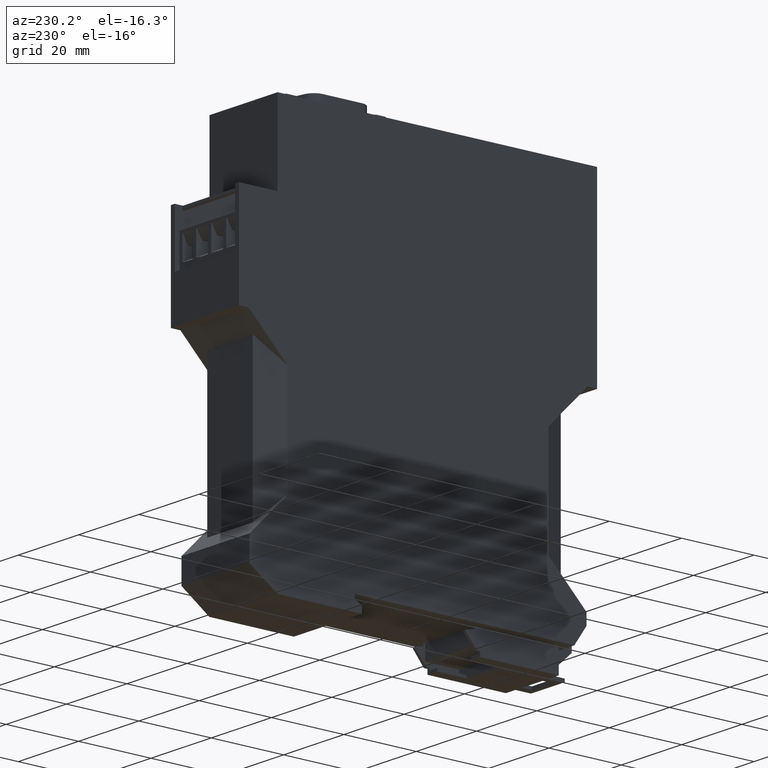
[diagram: clean part render]
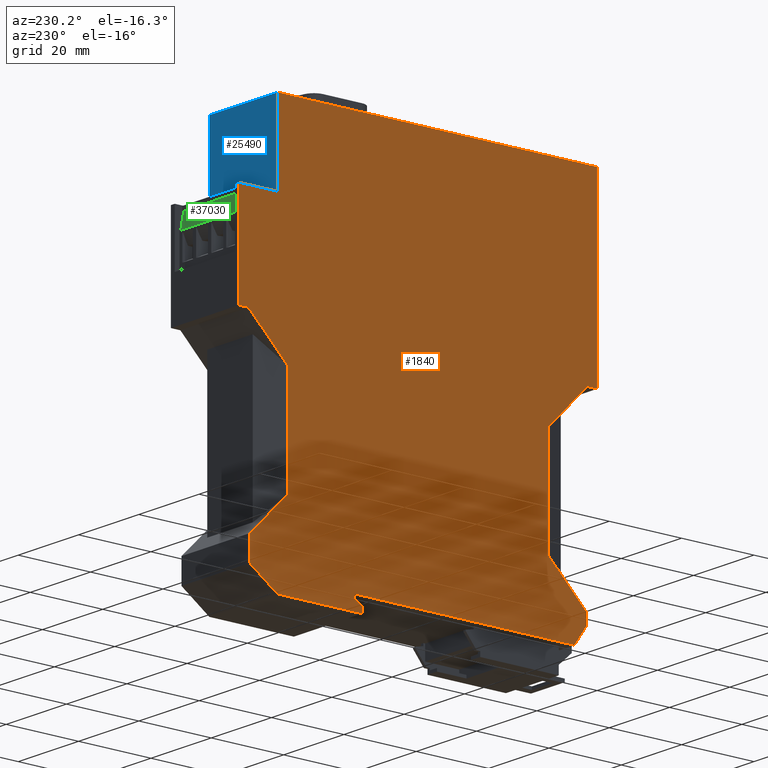
[diagram: same view with three faces highlighted in distinct colors, each labeled with its STEP entity id]
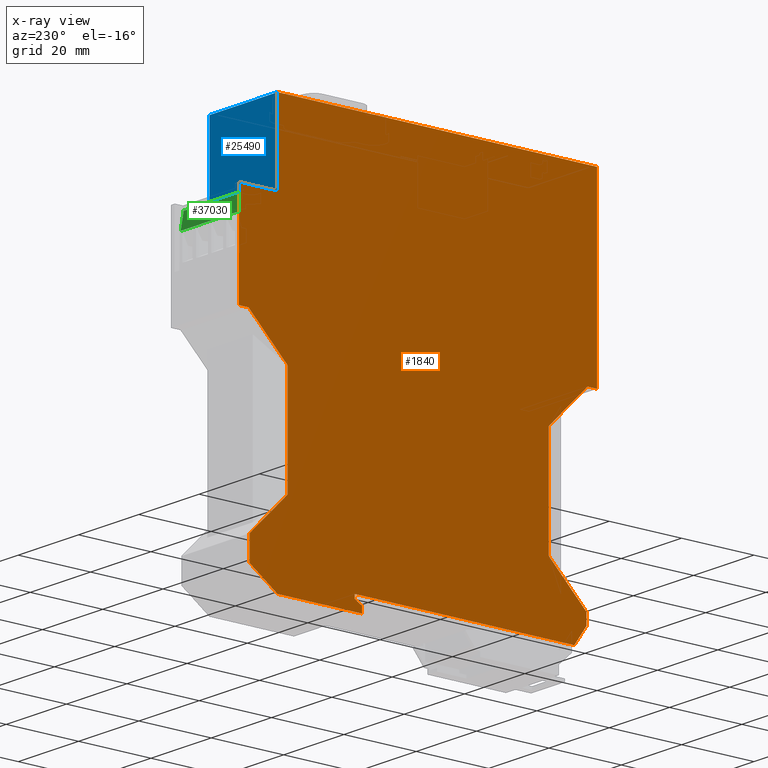
[diagram: x-ray of the same camera — body ghosted, the three highlighted faces saturated]
A machine part, auxiliary view with three faces highlighted in distinct colors.
The next image is the same camera in x-ray (body ghosted, the three faces saturated) — at least one of them is partly hidden behind the body in this view.
Their STEP definitions:

[orange] entity #1840 — the highlighted planar face has unit normal (-1, 0, 0).
#10=CARTESIAN_POINT('',(24.,24.,0.));
#20=DIRECTION('',(0.,0.,-1.));
#30=DIRECTION('',(-1.,0.,0.));
#40=AXIS2_PLACEMENT_3D('',#10,#20,#30);
#50=PLANE('',#40);
#60=CARTESIAN_POINT('',(24.,-7.14095449438901E-13,0.));
#70=DIRECTION('',(1.,-1.44E-14,-0.));
#80=VECTOR('',#70,1.);
#90=LINE('',#60,#80);
#100=CARTESIAN_POINT('',(-60.7000000000028,5.04485342389671E-13,0.));
#110=VERTEX_POINT('',#100);
#120=CARTESIAN_POINT('',(-1.76925141204265E-12,-3.69482222595252E-13,0.)
);
#130=VERTEX_POINT('',#120);
#140=EDGE_CURVE('',#110,#130,#90,.T.);
#150=ORIENTED_EDGE('',*,*,#140,.F.);
#160=CARTESIAN_POINT('',(-1.76925141204265E-12,-3.69482222595252E-13,0.)
);
#170=DIRECTION('',(-3.23004482157597E-15,-1.,0.));
#180=VECTOR('',#170,1.);
#190=LINE('',#160,#180);
#200=CARTESIAN_POINT('',(-1.76925141204265E-12,-1.09989609279425,0.));
#210=VERTEX_POINT('',#200);
#220=EDGE_CURVE('',#130,#210,#190,.T.);
#230=ORIENTED_EDGE('',*,*,#220,.F.);
#240=CARTESIAN_POINT('',(-1.77280412572145E-12,-1.09989609279425,0.));
#250=DIRECTION('',(-0.86602540378446,-0.499999999999964,0.));
#260=VECTOR('',#250,1.);
#270=LINE('',#240,#260);
#280=CARTESIAN_POINT('',(-2.00000000000178,-2.25459663117339,0.));
#290=VERTEX_POINT('',#280);
#300=EDGE_CURVE('',#210,#290,#270,.T.);
#310=ORIENTED_EDGE('',*,*,#300,.F.);
#320=CARTESIAN_POINT('',(-2.00000000000288,24.,0.));
#330=DIRECTION('',(4.27899157140077E-14,-1.,-0.));
#340=VECTOR('',#330,1.);
#350=LINE('',#320,#340);
#360=CARTESIAN_POINT('',(-2.00000000000178,-4.00000000000004,0.));
#370=VERTEX_POINT('',#360);
#380=EDGE_CURVE('',#290,#370,#350,.T.);
#390=ORIENTED_EDGE('',*,*,#380,.F.);
#400=CARTESIAN_POINT('',(24.,-4.00000000000004,0.));
#410=DIRECTION('',(1.,4.80965890943096E-26,0.));
#420=VECTOR('',#410,1.);
#430=LINE('',#400,#420);
#440=CARTESIAN_POINT('',(21.3380007636733,-4.00000000000004,0.));
#450=VERTEX_POINT('',#440);
#460=EDGE_CURVE('',#370,#450,#430,.T.);
#470=ORIENTED_EDGE('',*,*,#460,.F.);
#480=CARTESIAN_POINT('',(24.,-2.13604806801552,0.));
#490=DIRECTION('',(0.819152044288986,0.573576436351054,0.));
#500=VECTOR('',#490,1.);
#510=LINE('',#480,#500);
#520=CARTESIAN_POINT('',(29.0500000000947,1.40000000001001,0.));
#530=VERTEX_POINT('',#520);
#540=EDGE_CURVE('',#450,#530,#510,.T.);
#550=ORIENTED_EDGE('',*,*,#540,.F.);
#560=CARTESIAN_POINT('',(29.0500000000947,1.40000000001025,0.));
#570=DIRECTION('',(2.15315980533829E-15,1.,0.));
#580=VECTOR('',#570,1.);
#590=LINE('',#560,#580);
#600=CARTESIAN_POINT('',(29.0500000000947,7.99999999999599,0.));
#610=VERTEX_POINT('',#600);
#620=EDGE_CURVE('',#530,#610,#590,.T.);
#630=ORIENTED_EDGE('',*,*,#620,.F.);
#640=CARTESIAN_POINT('',(24.,13.0500000000897,0.));
#650=DIRECTION('',(-0.707106781186613,0.707106781186482,0.));
#660=VECTOR('',#650,1.);
#670=LINE('',#640,#660);
#680=CARTESIAN_POINT('',(18.55000000009,18.4999999999987,0.));
#690=VERTEX_POINT('',#680);
#700=EDGE_CURVE('',#610,#690,#670,.T.);
#710=ORIENTED_EDGE('',*,*,#700,.F.);
#720=CARTESIAN_POINT('',(18.5500000000901,24.,0.));
#730=DIRECTION('',(4.E-15,1.,0.));
#740=VECTOR('',#730,1.);
#750=LINE('',#720,#740);
#760=CARTESIAN_POINT('',(18.5500000000902,47.1000000000011,0.));
#770=VERTEX_POINT('',#760);
#780=EDGE_CURVE('',#690,#770,#750,.T.);
#790=ORIENTED_EDGE('',*,*,#780,.F.);
#800=CARTESIAN_POINT('',(24.,52.5499999999109,0.));
#810=DIRECTION('',(0.707106781186551,0.707106781186544,0.));
#820=VECTOR('',#810,1.);
#830=LINE('',#800,#820);
#840=CARTESIAN_POINT('',(29.3500000000902,57.900000000001,0.));
#850=VERTEX_POINT('',#840);
#860=EDGE_CURVE('',#770,#850,#830,.T.);
#870=ORIENTED_EDGE('',*,*,#860,.F.);
#880=CARTESIAN_POINT('',(24.,57.9000000000005,0.));
#890=DIRECTION('',(1.,9.89E-14,0.));
#900=VECTOR('',#890,1.);
#910=LINE('',#880,#900);
#920=CARTESIAN_POINT('',(32.0000000000386,57.9000000000013,0.));
#930=VERTEX_POINT('',#920);
#940=EDGE_CURVE('',#850,#930,#910,.T.);
#950=ORIENTED_EDGE('',*,*,#940,.F.);
#960=CARTESIAN_POINT('',(32.0000000000633,24.,0.));
#970=DIRECTION('',(7.27300000002176E-13,-1.,-0.));
#980=VECTOR('',#970,1.);
#990=LINE('',#960,#980);
#1000=CARTESIAN_POINT('',(32.0000000000188,85.1000000000079,0.));
#1010=VERTEX_POINT('',#1000);
#1020=EDGE_CURVE('',#1010,#930,#990,.T.);
#1030=ORIENTED_EDGE('',*,*,#1020,.T.);
#1040=CARTESIAN_POINT('',(24.,85.1000000000079,0.));
#1050=DIRECTION('',(-1.,-2.17588503379895E-24,0.));
#1060=VECTOR('',#1050,1.);
#1070=LINE('',#1040,#1060);
#1080=CARTESIAN_POINT('',(21.3000000000241,85.1000000000079,0.));
#1090=VERTEX_POINT('',#1080);
#1100=EDGE_CURVE('',#1010,#1090,#1070,.T.);
#1110=ORIENTED_EDGE('',*,*,#1100,.F.);
#1120=CARTESIAN_POINT('',(21.3000000000241,24.,0.));
#1130=DIRECTION('',(-2.17588503380295E-24,1.,0.));
#1140=VECTOR('',#1130,1.);
#1150=LINE('',#1120,#1140);
#1160=CARTESIAN_POINT('',(21.3000000000241,106.999999999943,0.));
#1170=VERTEX_POINT('',#1160);
#1180=EDGE_CURVE('',#1090,#1170,#1150,.T.);
#1190=ORIENTED_EDGE('',*,*,#1180,.F.);
#1200=CARTESIAN_POINT('',(24.,106.999999999941,0.));
#1210=DIRECTION('',(-1.,7.38964445188328E-13,0.));
#1220=VECTOR('',#1210,1.);
#1230=LINE('',#1200,#1220);
#1240=CARTESIAN_POINT('',(-66.9999999999093,107.000000000009,0.));
#1250=VERTEX_POINT('',#1240);
#1260=EDGE_CURVE('',#1170,#1250,#1230,.T.);
#1270=ORIENTED_EDGE('',*,*,#1260,.F.);
#1280=CARTESIAN_POINT('',(-66.9999999999093,24.,0.));
#1290=DIRECTION('',(0.,1.,0.));
#1300=VECTOR('',#1290,1.);
#1310=LINE('',#1280,#1300);
#1320=CARTESIAN_POINT('',(-66.9999999999093,57.9000000000013,0.));
#1330=VERTEX_POINT('',#1320);
#1340=EDGE_CURVE('',#1330,#1250,#1310,.T.);
#1350=ORIENTED_EDGE('',*,*,#1340,.T.);
#1360=CARTESIAN_POINT('',(24.,57.8999999999923,0.));
#1370=DIRECTION('',(-1.,9.89E-14,0.));
#1380=VECTOR('',#1370,1.);
#1390=LINE('',#1360,#1380);
#1400=CARTESIAN_POINT('',(-64.3500000000018,57.900000000001,0.));
#1410=VERTEX_POINT('',#1400);
#1420=EDGE_CURVE('',#1410,#1330,#1390,.T.);
#1430=ORIENTED_EDGE('',*,*,#1420,.T.);
#1440=CARTESIAN_POINT('',(24.,-30.45,0.));
#1450=DIRECTION('',(0.707106781186551,-0.707106781186544,-0.));
#1460=VECTOR('',#1450,1.);
#1470=LINE('',#1440,#1460);
#1480=CARTESIAN_POINT('',(-53.5500000000017,47.1000000000011,0.));
#1490=VERTEX_POINT('',#1480);
#1500=EDGE_CURVE('',#1410,#1490,#1470,.T.);
#1510=ORIENTED_EDGE('',*,*,#1500,.F.);
#1520=CARTESIAN_POINT('',(-53.5500000000017,24.,0.));
#1530=DIRECTION('',(0.,1.,0.));
#1540=VECTOR('',#1530,1.);
#1550=LINE('',#1520,#1540);
#1560=CARTESIAN_POINT('',(-53.5500000000018,18.4999999999986,0.));
#1570=VERTEX_POINT('',#1560);
#1580=EDGE_CURVE('',#1570,#1490,#1550,.T.);
#1590=ORIENTED_EDGE('',*,*,#1580,.T.);
#1600=CARTESIAN_POINT('',(24.,96.049999999986,0.));
#1610=DIRECTION('',(-0.707106781186613,-0.707106781186482,0.));
#1620=VECTOR('',#1610,1.);
#1630=LINE('',#1600,#1620);
#1640=CARTESIAN_POINT('',(-64.0500000000063,7.99999999999596,0.));
#1650=VERTEX_POINT('',#1640);
#1660=EDGE_CURVE('',#1570,#1650,#1630,.T.);
#1670=ORIENTED_EDGE('',*,*,#1660,.F.);
#1680=CARTESIAN_POINT('',(-64.0500000000063,24.,0.));
#1690=DIRECTION('',(0.,-1.,0.));
#1700=VECTOR('',#1690,1.);
#1710=LINE('',#1680,#1700);
#1720=CARTESIAN_POINT('',(-64.0500000000063,4.90000000001316,0.));
#1730=VERTEX_POINT('',#1720);
#1740=EDGE_CURVE('',#1650,#1730,#1710,.T.);
#1750=ORIENTED_EDGE('',*,*,#1740,.F.);
#1760=CARTESIAN_POINT('',(-77.1081632652836,24.,0.));
#1770=DIRECTION('',(0.564381899303651,-0.825513822863314,-0.));
#1780=VECTOR('',#1770,1.);
#1790=LINE('',#1760,#1780);
#1800=EDGE_CURVE('',#1730,#110,#1790,.T.);
#1810=ORIENTED_EDGE('',*,*,#1800,.F.);
#1820=EDGE_LOOP('',(#1810,#1750,#1670,#1590,#1510,#1430,#1350,#1270,
#1190,#1110,#1030,#950,#870,#790,#710,#630,#550,#470,#390,#310,#230,#150
));
#1830=FACE_OUTER_BOUND('',#1820,.T.);
#1840=ADVANCED_FACE('',(#1830),#50,.T.);

[blue] entity #25490 — the highlighted planar face has unit normal (0, 1, 0).
#1080=CARTESIAN_POINT('',(21.3000000000241,85.1000000000079,0.));
#1090=VERTEX_POINT('',#1080);
#1120=CARTESIAN_POINT('',(21.3000000000241,24.,0.));
#1130=DIRECTION('',(-2.17588503380295E-24,1.,0.));
#1140=VECTOR('',#1130,1.);
#1150=LINE('',#1120,#1140);
#1160=CARTESIAN_POINT('',(21.3000000000241,106.999999999943,0.));
#1170=VERTEX_POINT('',#1160);
#1180=EDGE_CURVE('',#1090,#1170,#1150,.T.);
#2590=CARTESIAN_POINT('',(21.2999999999832,106.999999999943,22.6));
#2600=VERTEX_POINT('',#2590);
#2630=CARTESIAN_POINT('',(21.3000000000036,24.,22.6));
#2640=DIRECTION('',(2.17588503380295E-24,-1.,-0.));
#2650=VECTOR('',#2640,1.);
#2660=LINE('',#2630,#2650);
#2670=CARTESIAN_POINT('',(21.2999999999832,85.1000000000079,22.6));
#2680=VERTEX_POINT('',#2670);
#2690=EDGE_CURVE('',#2600,#2680,#2660,.T.);
#21330=CARTESIAN_POINT('',(21.3000000000241,85.1000000000079,0.));
#21340=DIRECTION('',(-1.81046150293795E-12,2.21416216699985E-24,1.));
#21350=VECTOR('',#21340,1.);
#21360=LINE('',#21330,#21350);
#21370=CARTESIAN_POINT('',(21.3000000000217,85.1000000000079,
1.30000000015381));
#21380=VERTEX_POINT('',#21370);
#21390=EDGE_CURVE('',#1090,#21380,#21360,.T.);
#24940=CARTESIAN_POINT('',(21.3000000000241,106.999999999943,0.));
#24950=DIRECTION('',(-1.81046150293795E-12,2.21416216699985E-24,1.));
#24960=VECTOR('',#24950,1.);
#24970=LINE('',#24940,#24960);
#24980=EDGE_CURVE('',#1170,#2600,#24970,.T.);
#25120=CARTESIAN_POINT('',(21.300000000011,99.421597788003,
7.24395756602027));
#25130=DIRECTION('',(1.,2.17588503380295E-24,1.81046150293795E-12));
#25140=DIRECTION('',(1.81046150293795E-12,0.,-1.));
#25150=AXIS2_PLACEMENT_3D('',#25120,#25130,#25140);
#25160=PLANE('',#25150);
#25170=ORIENTED_EDGE('',*,*,#1180,.T.);
#25180=ORIENTED_EDGE('',*,*,#21390,.F.);
#25190=CARTESIAN_POINT('',(21.3000000000217,24.,1.30000000015381));
#25200=DIRECTION('',(2.17588503379894E-24,-1.,2.21419669665522E-24));
#25210=VECTOR('',#25200,1.);
#25220=LINE('',#25190,#25210);
#25230=CARTESIAN_POINT('',(21.3000000000217,85.0000000000079,
1.30000000015381));
#25240=VERTEX_POINT('',#25230);
#25250=EDGE_CURVE('',#21380,#25240,#25220,.T.);
#25260=ORIENTED_EDGE('',*,*,#25250,.F.);
#25270=CARTESIAN_POINT('',(21.3000000000241,85.0000000000079,0.));
#25280=DIRECTION('',(1.81046150293795E-12,0.,-1.));
#25290=VECTOR('',#25280,1.);
#25300=LINE('',#25270,#25290);
#25310=CARTESIAN_POINT('',(21.2999999999855,85.0000000000079,
21.3000000001629));
#25320=VERTEX_POINT('',#25310);
#25330=EDGE_CURVE('',#25320,#25240,#25300,.T.);
#25340=ORIENTED_EDGE('',*,*,#25330,.T.);
#25350=CARTESIAN_POINT('',(21.2999999999855,24.,21.3000000001629));
#25360=DIRECTION('',(-2.17588503379894E-24,1.,-2.21419669665522E-24));
#25370=VECTOR('',#25360,1.);
#25380=LINE('',#25350,#25370);
#25390=CARTESIAN_POINT('',(21.2999999999855,85.1000000000079,
21.3000000001629));
#25400=VERTEX_POINT('',#25390);
#25410=EDGE_CURVE('',#25320,#25400,#25380,.T.);
#25420=ORIENTED_EDGE('',*,*,#25410,.F.);
#25430=EDGE_CURVE('',#25400,#2680,#21360,.T.);
#25440=ORIENTED_EDGE('',*,*,#25430,.F.);
#25450=ORIENTED_EDGE('',*,*,#2690,.T.);
#25460=ORIENTED_EDGE('',*,*,#24980,.T.);
#25470=EDGE_LOOP('',(#25460,#25450,#25440,#25420,#25340,#25260,#25180,
#25170));
#25480=FACE_OUTER_BOUND('',#25470,.T.);
#25490=ADVANCED_FACE('',(#25480),#25160,.T.);

[green] entity #37030 — the highlighted planar face has unit normal (0, 0.9848, 0.1736).
#34510=CARTESIAN_POINT('',(29.5387195026883,83.9860003350739,
21.3000000001629));
#34520=VERTEX_POINT('',#34510);
#34550=CARTESIAN_POINT('',(40.1158698265483,24.,21.3000000001629));
#34560=DIRECTION('',(-0.173648177666923,0.984807753012209,0.));
#34570=VECTOR('',#34560,1.);
#34580=LINE('',#34550,#34570);
#34590=CARTESIAN_POINT('',(30.3500000000092,79.3850000000071,
21.3000000001629));
#34600=VERTEX_POINT('',#34590);
#34610=EDGE_CURVE('',#34600,#34520,#34580,.T.);
#34950=CARTESIAN_POINT('',(40.1158698265483,24.,1.30000000018787));
#34960=DIRECTION('',(0.173648177666923,-0.984807753012209,
3.1431801605919E-13));
#34970=VECTOR('',#34960,1.);
#34980=LINE('',#34950,#34970);
#34990=CARTESIAN_POINT('',(29.5387195026883,83.9860003350739,
1.30000000016873));
#35000=VERTEX_POINT('',#34990);
#35010=CARTESIAN_POINT('',(30.3500000000092,79.3850000000071,
1.30000000017019));
#35020=VERTEX_POINT('',#35010);
#35030=EDGE_CURVE('',#35000,#35020,#34980,.T.);
#36680=CARTESIAN_POINT('',(29.5387195026883,83.9860003350738,
18.800000000168));
#36690=DIRECTION('',(-1.13152790739016E-17,6.41721364957217E-17,1.));
#36700=VECTOR('',#36690,1.);
#36710=LINE('',#36680,#36700);
#36720=EDGE_CURVE('',#35000,#34520,#36710,.T.);
#36870=CARTESIAN_POINT('',(29.6209356073298,83.5197296355405,
-3.09999999983205));
#36880=DIRECTION('',(0.984807753012209,0.173648177666923,0.));
#36890=DIRECTION('',(0.173648177666923,-0.984807753012209,-0.));
#36900=AXIS2_PLACEMENT_3D('',#36870,#36880,#36890);
#36910=PLANE('',#36900);
#36920=CARTESIAN_POINT('',(30.3500000000092,79.3850000000071,
18.800000000168));
#36930=DIRECTION('',(0.,0.,1.));
#36940=VECTOR('',#36930,1.);
#36950=LINE('',#36920,#36940);
#36960=EDGE_CURVE('',#35020,#34600,#36950,.T.);
#36970=ORIENTED_EDGE('',*,*,#36960,.F.);
#36980=ORIENTED_EDGE('',*,*,#34610,.F.);
#36990=ORIENTED_EDGE('',*,*,#36720,.T.);
#37000=ORIENTED_EDGE('',*,*,#35030,.F.);
#37010=EDGE_LOOP('',(#37000,#36990,#36980,#36970));
#37020=FACE_OUTER_BOUND('',#37010,.T.);
#37030=ADVANCED_FACE('',(#37020),#36910,.T.);